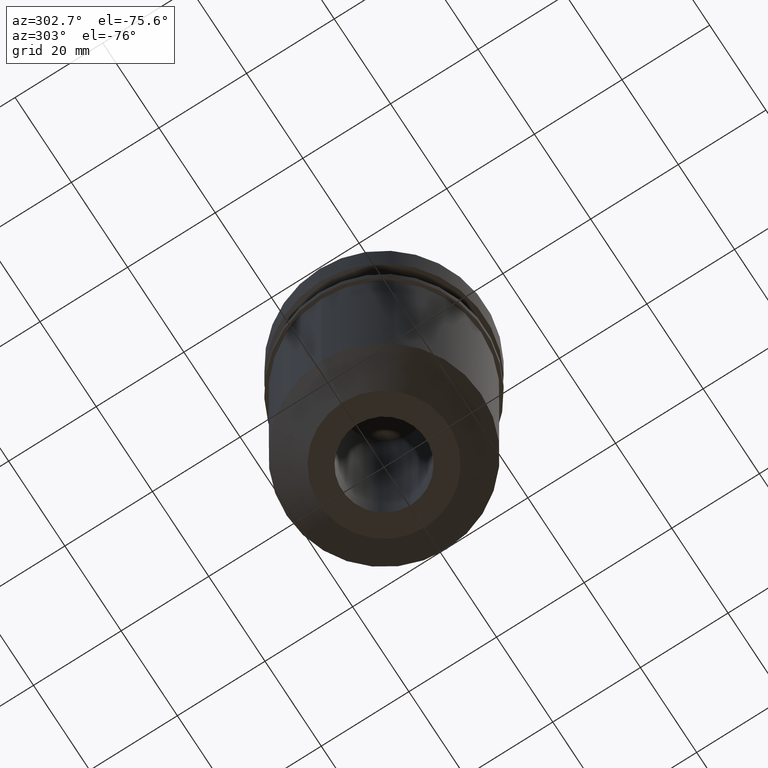
[diagram: clean part render]
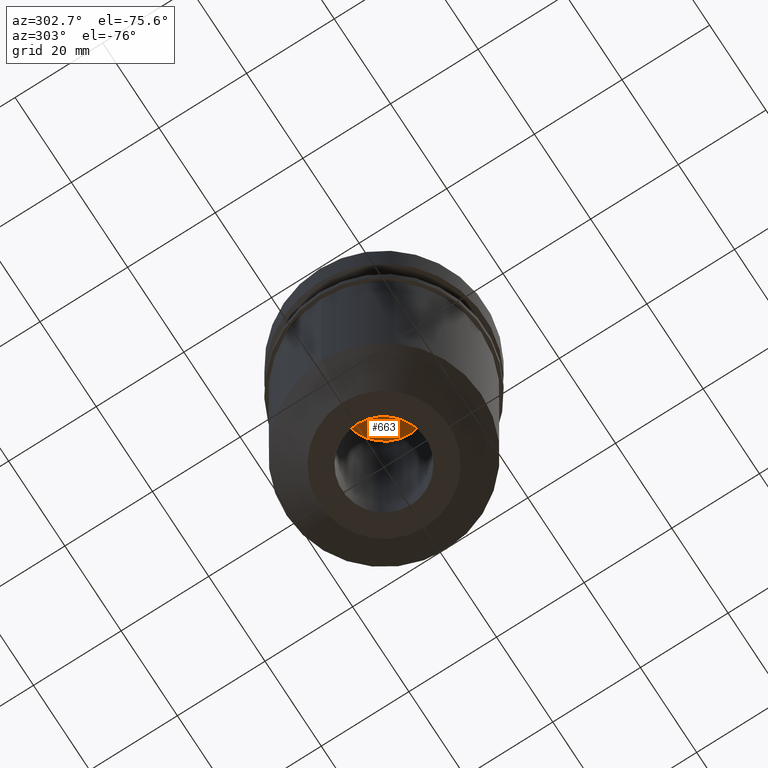
[diagram: same view with one face highlighted and labeled with its STEP entity id]
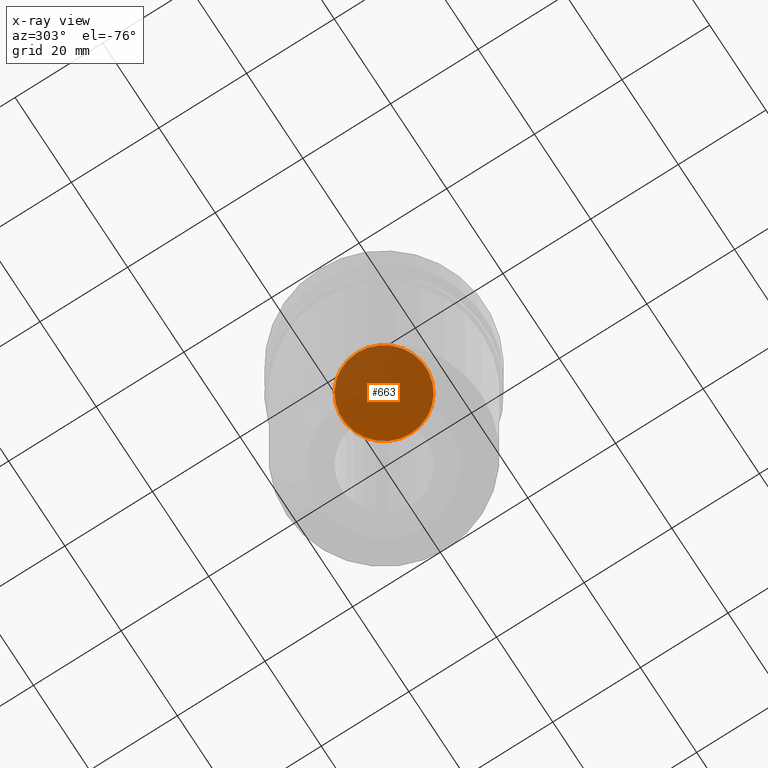
[diagram: x-ray of the same camera — body ghosted, the highlighted face saturated]
A machine part, auxiliary view. The second image highlights one B-rep face of the part: STEP entity #663.
The next image is the same camera in x-ray: the body ghosted, the highlighted face saturated — about 85% of this face is hidden behind the body in this view.
In plain terms, the highlighted planar face has unit normal (0, -0, 1).
Its self-contained STEP definition (entity closure, byte-faithful):
#9 = CARTESIAN_POINT ( 'NONE',  ( 9.524999999999998579, 0.000000000000000000, -20.99999999999999645 ) ) ;
#22 = CARTESIAN_POINT ( 'NONE',  ( 0.000000000000000000, 0.000000000000000000, -20.99999999999999645 ) ) ;
#41 = ORIENTED_EDGE ( 'NONE', *, *, #68, .F. ) ;
#47 = CARTESIAN_POINT ( 'NONE',  ( 0.000000000000000000, 0.000000000000000000, -20.99999999999999645 ) ) ;
#68 = EDGE_CURVE ( 'NONE', #544, #532, #108, .T. ) ;
#69 = CARTESIAN_POINT ( 'NONE',  ( -9.524999999999998579, 1.166476076187853627E-15, -20.99999999999999645 ) ) ;
#108 = CIRCLE ( 'NONE', #344, 9.524999999999998579 ) ;
#133 = DIRECTION ( 'NONE',  ( -0.000000000000000000, -0.000000000000000000, 1.000000000000000000 ) ) ;
#171 = DIRECTION ( 'NONE',  ( 0.000000000000000000, -0.000000000000000000, 1.000000000000000000 ) ) ;
#174 = PLANE ( 'NONE',  #619 ) ;
#177 = DIRECTION ( 'NONE',  ( 1.000000000000000000, 0.000000000000000000, 0.000000000000000000 ) ) ;
#184 = EDGE_LOOP ( 'NONE', ( #406, #41 ) ) ;
#193 = EDGE_CURVE ( 'NONE', #532, #544, #330, .T. ) ;
#228 = FACE_OUTER_BOUND ( 'NONE', #184, .T. ) ;
#286 = DIRECTION ( 'NONE',  ( -0.000000000000000000, -0.000000000000000000, 1.000000000000000000 ) ) ;
#303 = AXIS2_PLACEMENT_3D ( 'NONE', #22, #133, #498 ) ;
#330 = CIRCLE ( 'NONE', #303, 9.524999999999998579 ) ;
#344 = AXIS2_PLACEMENT_3D ( 'NONE', #47, #286, #177 ) ;
#406 = ORIENTED_EDGE ( 'NONE', *, *, #193, .F. ) ;
#498 = DIRECTION ( 'NONE',  ( 1.000000000000000000, 0.000000000000000000, 0.000000000000000000 ) ) ;
#532 = VERTEX_POINT ( 'NONE', #9 ) ;
#544 = VERTEX_POINT ( 'NONE', #69 ) ;
#619 = AXIS2_PLACEMENT_3D ( 'NONE', #712, #171, #707 ) ;
#663 = ADVANCED_FACE ( 'NONE', ( #228 ), #174, .F. ) ;
#707 = DIRECTION ( 'NONE',  ( 1.000000000000000000, 0.000000000000000000, 0.000000000000000000 ) ) ;
#712 = CARTESIAN_POINT ( 'NONE',  ( 0.000000000000000000, 22.99999999999999289, -20.99999999999999645 ) ) ;